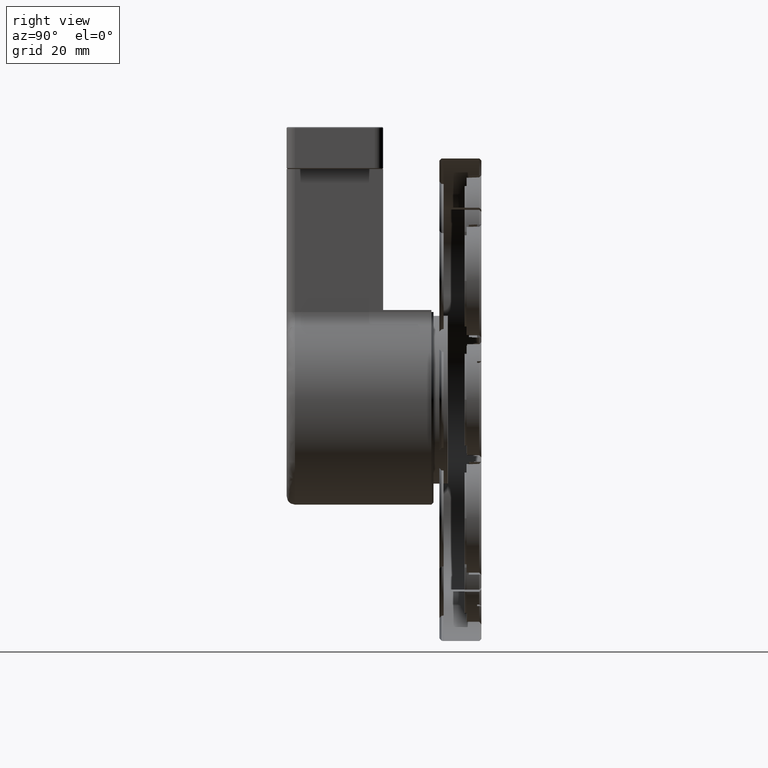
[diagram: clean part render]
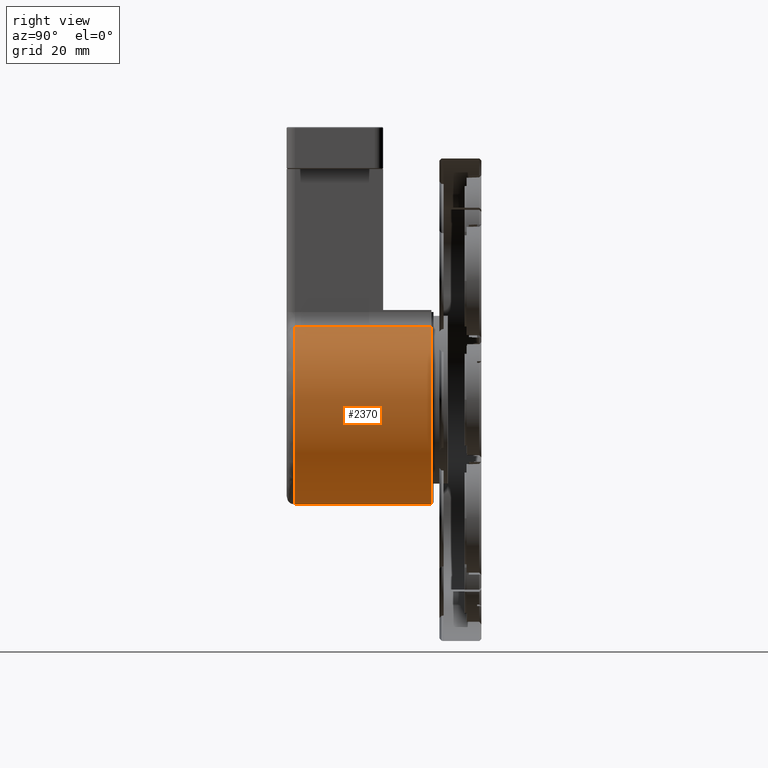
[diagram: same view with one face highlighted and labeled with its STEP entity id]
A machine part, right view. The second image highlights one B-rep face of the part: STEP entity #2370.
In plain terms, the highlighted cylindrical surface (partial cylindrical patch) has radius 25 mm, axis along (0, 1, 0).
Its self-contained STEP definition (entity closure, byte-faithful):
#675 = DIRECTION ( 'NONE',  ( 0.000000000000000000, 0.000000000000000000, 1.000000000000000000 ) ) ;
#973 = VERTEX_POINT ( 'NONE', #16990 ) ;
#1341 = DIRECTION ( 'NONE',  ( -0.000000000000000000, -1.000000000000000000, -0.000000000000000000 ) ) ;
#1430 = AXIS2_PLACEMENT_3D ( 'NONE', #13764, #11070, #675 ) ;
#2370 = ADVANCED_FACE ( 'NONE', ( #19012 ), #18815, .T. ) ;
#2389 = VECTOR ( 'NONE', #3467, 1000.000000000000000 ) ;
#2795 = DIRECTION ( 'NONE',  ( 0.000000000000000000, 1.000000000000000000, 0.000000000000000000 ) ) ;
#2948 = VECTOR ( 'NONE', #2795, 1000.000000000000000 ) ;
#3467 = DIRECTION ( 'NONE',  ( -0.000000000000000000, -1.000000000000000000, -0.000000000000000000 ) ) ;
#3643 = ORIENTED_EDGE ( 'NONE', *, *, #10923, .T. ) ;
#4090 = DIRECTION ( 'NONE',  ( 0.000000000000000000, 0.000000000000000000, 1.000000000000000000 ) ) ;
#4122 = CARTESIAN_POINT ( 'NONE',  ( -28.43780630105018048, 28.85879132875101760, 69.99999999999998579 ) ) ;
#4850 = ORIENTED_EDGE ( 'NONE', *, *, #8834, .T. ) ;
#4916 = LINE ( 'NONE', #12237, #2389 ) ;
#5628 = DIRECTION ( 'NONE',  ( 0.000000000000000000, 1.000000000000000000, 0.000000000000000000 ) ) ;
#6714 = CARTESIAN_POINT ( 'NONE',  ( -46.35447296772131409, 28.85879132876900854, 87.43539662741061136 ) ) ;
#7042 = VERTEX_POINT ( 'NONE', #6714 ) ;
#7534 = CIRCLE ( 'NONE', #1430, 25.00000000000000711 ) ;
#7928 = CIRCLE ( 'NONE', #8849, 25.00000000000000711 ) ;
#8359 = AXIS2_PLACEMENT_3D ( 'NONE', #17262, #5628, #4090 ) ;
#8834 = EDGE_CURVE ( 'NONE', #11980, #973, #7534, .T. ) ;
#8849 = AXIS2_PLACEMENT_3D ( 'NONE', #4122, #1341, #15871 ) ;
#9626 = LINE ( 'NONE', #10284, #2948 ) ;
#10284 = CARTESIAN_POINT ( 'NONE',  ( -46.35447296771685899, -5.641208671248977957, 87.43539662742306007 ) ) ;
#10923 = EDGE_CURVE ( 'NONE', #16994, #11980, #4916, .T. ) ;
#11019 = EDGE_CURVE ( 'NONE', #7042, #16994, #7928, .T. ) ;
#11070 = DIRECTION ( 'NONE',  ( 0.000000000000000000, 1.000000000000000000, 0.000000000000000000 ) ) ;
#11980 = VERTEX_POINT ( 'NONE', #17003 ) ;
#12237 = CARTESIAN_POINT ( 'NONE',  ( -10.52113963438350197, -5.641208671248977957, 87.43539662742306007 ) ) ;
#13764 = CARTESIAN_POINT ( 'NONE',  ( -28.43780630105018048, -3.641208671248978845, 69.99999999999998579 ) ) ;
#13818 = ORIENTED_EDGE ( 'NONE', *, *, #11019, .T. ) ;
#15871 = DIRECTION ( 'NONE',  ( 8.326672684688672081E-16, 0.000000000000000000, 1.000000000000000000 ) ) ;
#16477 = EDGE_LOOP ( 'NONE', ( #13818, #3643, #4850, #18453 ) ) ;
#16952 = EDGE_CURVE ( 'NONE', #973, #7042, #9626, .T. ) ;
#16990 = CARTESIAN_POINT ( 'NONE',  ( -46.35447296771685899, -3.641208671248979289, 87.43539662742306007 ) ) ;
#16994 = VERTEX_POINT ( 'NONE', #17676 ) ;
#17003 = CARTESIAN_POINT ( 'NONE',  ( -10.52113963438350552, -3.641208671248978845, 87.43539662742306007 ) ) ;
#17262 = CARTESIAN_POINT ( 'NONE',  ( -28.43780630105018048, -5.641208671248977957, 69.99999999999998579 ) ) ;
#17676 = CARTESIAN_POINT ( 'NONE',  ( -10.52113963437903443, 28.85879132874058328, 87.43539662741061136 ) ) ;
#18453 = ORIENTED_EDGE ( 'NONE', *, *, #16952, .T. ) ;
#18815 = CYLINDRICAL_SURFACE ( 'NONE', #8359, 25.00000000000000711 ) ;
#19012 = FACE_OUTER_BOUND ( 'NONE', #16477, .T. ) ;